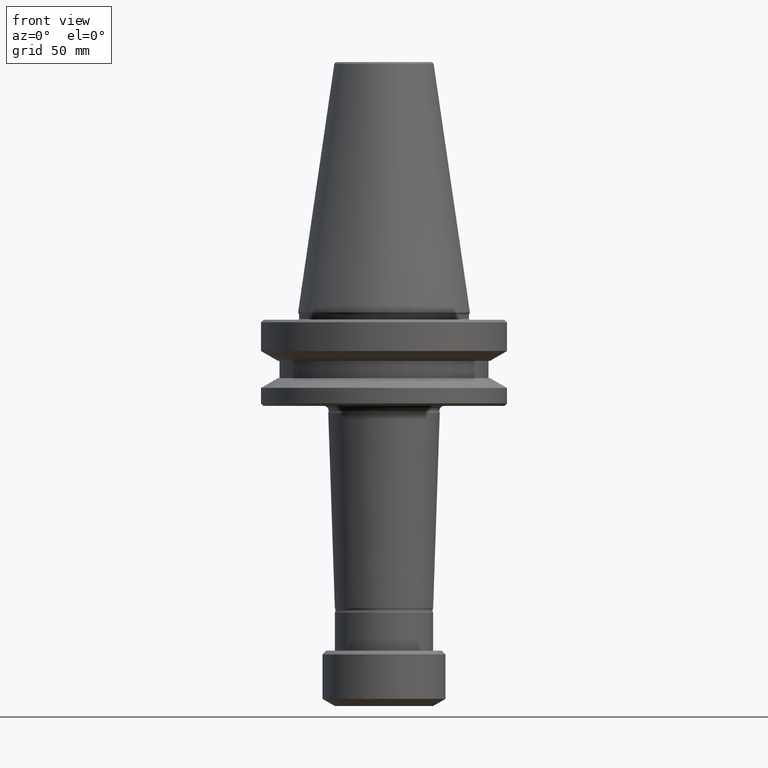
[diagram: clean part render]
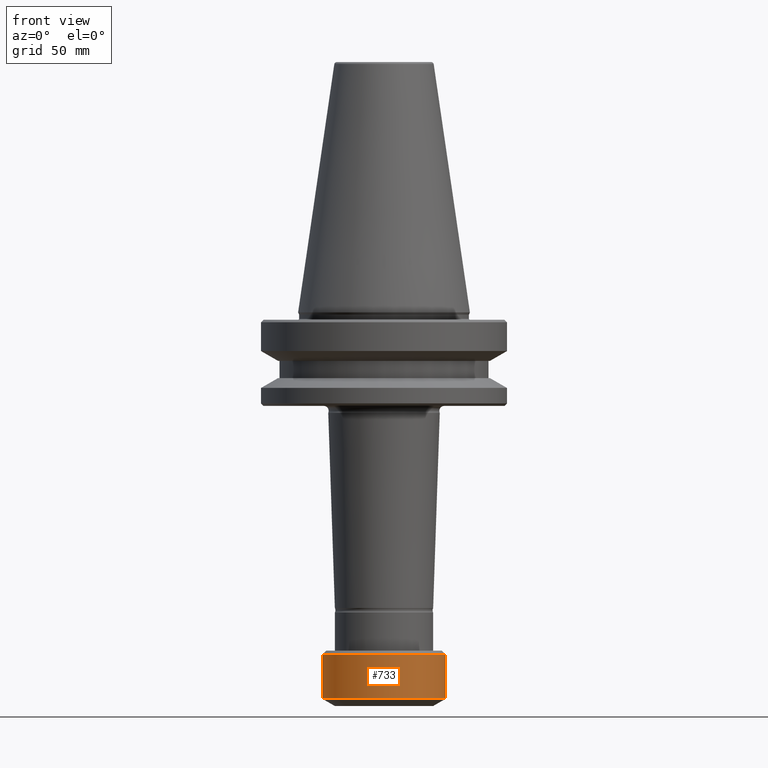
[diagram: same view with one face highlighted and labeled with its STEP entity id]
A machine part, front view. The second image highlights one B-rep face of the part: STEP entity #733.
In plain terms, the highlighted cylindrical surface (partial cylindrical patch) has radius 25 mm, axis along (-0, -0, 1).
Its self-contained STEP definition (entity closure, byte-faithful):
#5 = FACE_OUTER_BOUND ( 'NONE', #1070, .T. ) ;
#70 = VERTEX_POINT ( 'NONE', #1291 ) ;
#117 = CARTESIAN_POINT ( 'NONE',  ( -24.99999999999999300, 3.061616997868382300E-015, 110.9439486236862400 ) ) ;
#123 = LINE ( 'NONE', #1199, #1216 ) ;
#168 = ORIENTED_EDGE ( 'NONE', *, *, #1089, .T. ) ;
#173 = EDGE_CURVE ( 'NONE', #70, #864, #621, .T. ) ;
#218 = ORIENTED_EDGE ( 'NONE', *, *, #173, .F. ) ;
#291 = CYLINDRICAL_SURFACE ( 'NONE', #952, 24.99999999999999300 ) ;
#362 = CARTESIAN_POINT ( 'NONE',  ( 0.0000000000000000000, 0.0000000000000000000, -157.1146481864637700 ) ) ;
#390 = DIRECTION ( 'NONE',  ( 1.000000000000000000, 0.0000000000000000000, 0.0000000000000000000 ) ) ;
#392 = AXIS2_PLACEMENT_3D ( 'NONE', #362, #1097, #478 ) ;
#478 = DIRECTION ( 'NONE',  ( 1.000000000000000000, 0.0000000000000000000, 0.0000000000000000000 ) ) ;
#496 = VERTEX_POINT ( 'NONE', #1360 ) ;
#549 = DIRECTION ( 'NONE',  ( -0.0000000000000000000, -0.0000000000000000000, 1.000000000000000000 ) ) ;
#599 = ORIENTED_EDGE ( 'NONE', *, *, #1114, .T. ) ;
#618 = LINE ( 'NONE', #117, #687 ) ;
#621 = CIRCLE ( 'NONE', #807, 24.99999999999999300 ) ;
#646 = CARTESIAN_POINT ( 'NONE',  ( 24.99999999999999300, 0.0000000000000000000, -139.0013995324637200 ) ) ;
#687 = VECTOR ( 'NONE', #766, 1000.000000000000000 ) ;
#733 = ADVANCED_FACE ( 'NONE', ( #5 ), #291, .T. ) ;
#735 = CIRCLE ( 'NONE', #392, 24.99999999999999300 ) ;
#766 = DIRECTION ( 'NONE',  ( -0.0000000000000000000, -0.0000000000000000000, 1.000000000000000000 ) ) ;
#807 = AXIS2_PLACEMENT_3D ( 'NONE', #1334, #549, #390 ) ;
#864 = VERTEX_POINT ( 'NONE', #646 ) ;
#889 = DIRECTION ( 'NONE',  ( -0.0000000000000000000, -0.0000000000000000000, 1.000000000000000000 ) ) ;
#952 = AXIS2_PLACEMENT_3D ( 'NONE', #1252, #1156, #1175 ) ;
#954 = EDGE_CURVE ( 'NONE', #1230, #70, #618, .T. ) ;
#1070 = EDGE_LOOP ( 'NONE', ( #1346, #168, #599, #218 ) ) ;
#1089 = EDGE_CURVE ( 'NONE', #1230, #496, #735, .T. ) ;
#1097 = DIRECTION ( 'NONE',  ( -0.0000000000000000000, -0.0000000000000000000, 1.000000000000000000 ) ) ;
#1114 = EDGE_CURVE ( 'NONE', #496, #864, #123, .T. ) ;
#1156 = DIRECTION ( 'NONE',  ( -0.0000000000000000000, -0.0000000000000000000, 1.000000000000000000 ) ) ;
#1175 = DIRECTION ( 'NONE',  ( 1.000000000000000000, 0.0000000000000000000, 0.0000000000000000000 ) ) ;
#1199 = CARTESIAN_POINT ( 'NONE',  ( 24.99999999999999300, 0.0000000000000000000, 110.9439486236862400 ) ) ;
#1208 = CARTESIAN_POINT ( 'NONE',  ( -24.99999999999999300, 3.061616997868382300E-015, -157.1146481864637700 ) ) ;
#1216 = VECTOR ( 'NONE', #889, 1000.000000000000000 ) ;
#1230 = VERTEX_POINT ( 'NONE', #1208 ) ;
#1252 = CARTESIAN_POINT ( 'NONE',  ( 0.0000000000000000000, 0.0000000000000000000, 110.9439486236862400 ) ) ;
#1291 = CARTESIAN_POINT ( 'NONE',  ( -24.99999999999999300, 3.061616997868382300E-015, -139.0013995324637200 ) ) ;
#1334 = CARTESIAN_POINT ( 'NONE',  ( 0.0000000000000000000, 0.0000000000000000000, -139.0013995324637200 ) ) ;
#1346 = ORIENTED_EDGE ( 'NONE', *, *, #954, .F. ) ;
#1360 = CARTESIAN_POINT ( 'NONE',  ( 24.99999999999999300, 0.0000000000000000000, -157.1146481864637700 ) ) ;